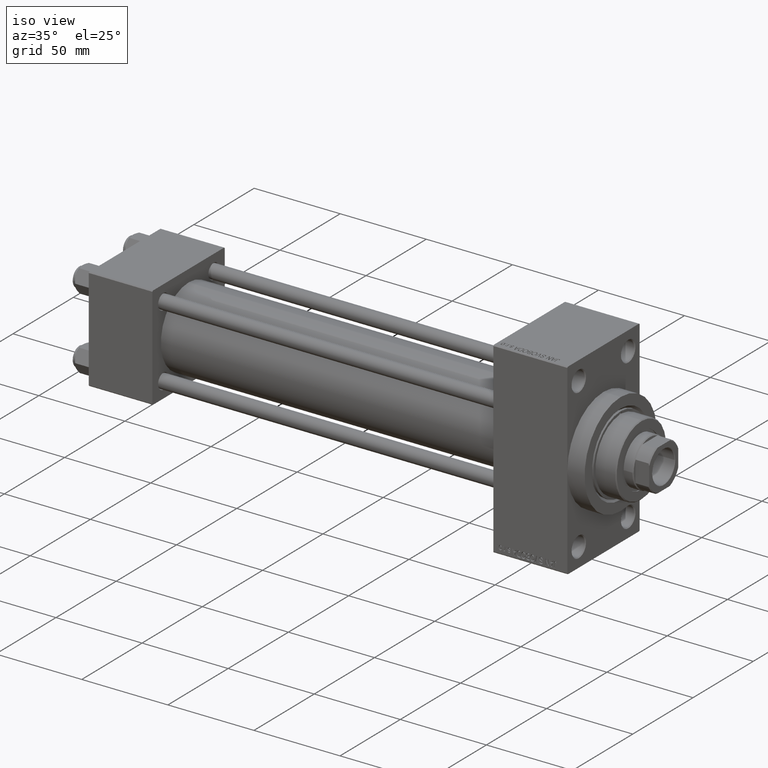
[diagram: clean part render]
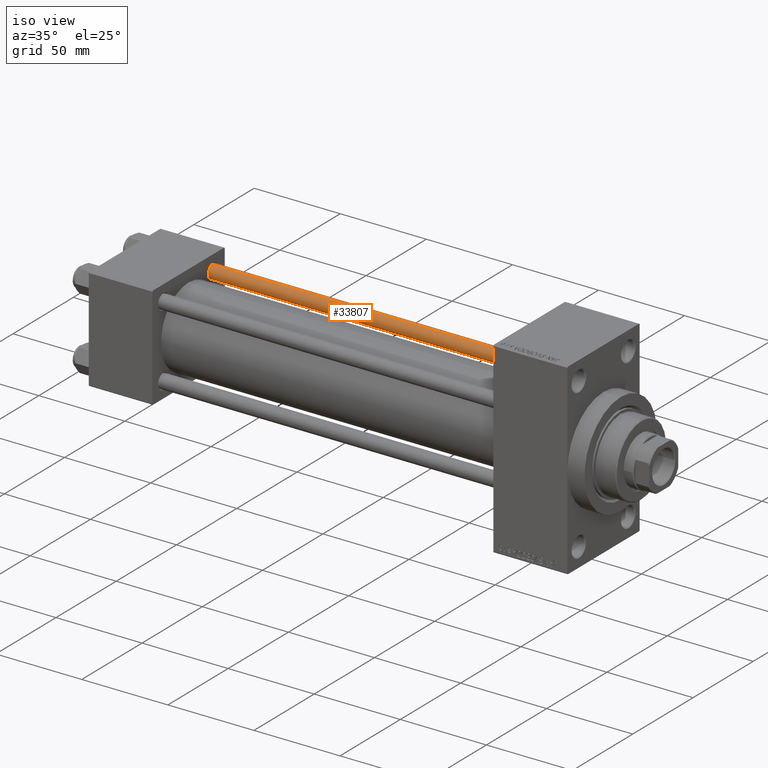
[diagram: same view with one face highlighted and labeled with its STEP entity id]
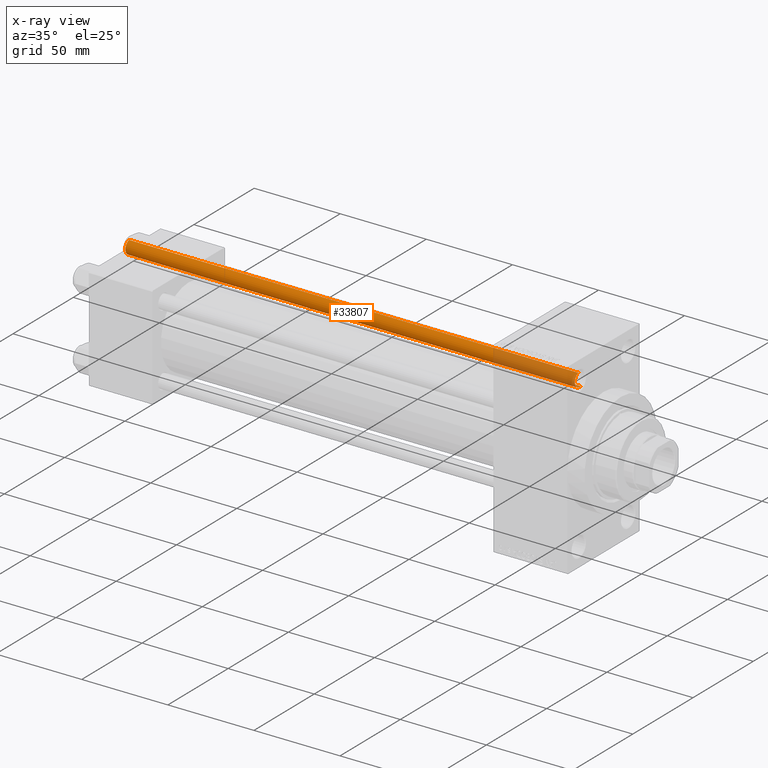
[diagram: x-ray of the same camera — body ghosted, the highlighted face saturated]
A machine part, iso view. The second image highlights one B-rep face of the part: STEP entity #33807.
The next image is the same camera in x-ray: the body ghosted, the highlighted face saturated — about 18% of this face is hidden behind the body in this view.
In plain terms, the highlighted cylindrical surface (edge-blend (fillet) strip) has radius 4 mm, axis along (-1, -0, 0).
Its self-contained STEP definition (entity closure, byte-faithful):
#380 = CIRCLE ( 'NONE', #15730, 4.000000000000000000 ) ;
#2212 = ORIENTED_EDGE ( 'NONE', *, *, #12336, .T. ) ;
#5377 = CARTESIAN_POINT ( 'NONE',  ( -4.000000000000000000, 0.000000000000000000, 0.5000000000000559552 ) ) ;
#5901 = DIRECTION ( 'NONE',  ( -1.000000000000000000, 0.000000000000000000, 0.000000000000000000 ) ) ;
#6137 = FACE_OUTER_BOUND ( 'NONE', #21073, .T. ) ;
#10549 = CARTESIAN_POINT ( 'NONE',  ( -4.000000000000000000, 0.000000000000000000, 262.0000000000000000 ) ) ;
#10957 = VECTOR ( 'NONE', #25201, 1000.000000000000000 ) ;
#11605 = ORIENTED_EDGE ( 'NONE', *, *, #22136, .T. ) ;
#12336 = EDGE_CURVE ( 'NONE', #37679, #12373, #40007, .T. ) ;
#12373 = VERTEX_POINT ( 'NONE', #44074 ) ;
#14207 = AXIS2_PLACEMENT_3D ( 'NONE', #31615, #24419, #5901 ) ;
#15201 = VERTEX_POINT ( 'NONE', #41320 ) ;
#15494 = EDGE_CURVE ( 'NONE', #28368, #37679, #47070, .T. ) ;
#15730 = AXIS2_PLACEMENT_3D ( 'NONE', #46528, #43156, #24660 ) ;
#17426 = DIRECTION ( 'NONE',  ( -0.000000000000000000, -0.000000000000000000, 1.000000000000000000 ) ) ;
#17723 = CARTESIAN_POINT ( 'NONE',  ( -4.000000000000000000, 0.000000000000000000, 261.5000000000000000 ) ) ;
#18782 = VECTOR ( 'NONE', #30875, 1000.000000000000000 ) ;
#21073 = EDGE_LOOP ( 'NONE', ( #30822, #11605, #45488, #2212 ) ) ;
#22136 = EDGE_CURVE ( 'NONE', #15201, #28368, #380, .T. ) ;
#24245 = EDGE_CURVE ( 'NONE', #15201, #12373, #27279, .T. ) ;
#24419 = DIRECTION ( 'NONE',  ( -0.000000000000000000, -0.000000000000000000, -1.000000000000000000 ) ) ;
#24660 = DIRECTION ( 'NONE',  ( 1.000000000000000000, 0.000000000000000000, 0.000000000000000000 ) ) ;
#25201 = DIRECTION ( 'NONE',  ( -0.000000000000000000, -0.000000000000000000, -1.000000000000000000 ) ) ;
#27279 = LINE ( 'NONE', #38795, #18782 ) ;
#28368 = VERTEX_POINT ( 'NONE', #17723 ) ;
#30822 = ORIENTED_EDGE ( 'NONE', *, *, #24245, .F. ) ;
#30875 = DIRECTION ( 'NONE',  ( -0.000000000000000000, -0.000000000000000000, -1.000000000000000000 ) ) ;
#31615 = CARTESIAN_POINT ( 'NONE',  ( 0.000000000000000000, 0.000000000000000000, 262.0000000000000000 ) ) ;
#32071 = DIRECTION ( 'NONE',  ( 1.000000000000000000, 0.000000000000000000, 0.000000000000000000 ) ) ;
#33807 = ADVANCED_FACE ( 'NONE', ( #6137 ), #35704, .T. ) ;
#35704 = CYLINDRICAL_SURFACE ( 'NONE', #14207, 4.000000000000000000 ) ;
#37679 = VERTEX_POINT ( 'NONE', #5377 ) ;
#38795 = CARTESIAN_POINT ( 'NONE',  ( 4.000000000000000000, 4.898587196589412829E-16, 262.0000000000000000 ) ) ;
#39764 = CARTESIAN_POINT ( 'NONE',  ( 0.000000000000000000, 0.000000000000000000, 0.5000000000000559552 ) ) ;
#40007 = CIRCLE ( 'NONE', #45382, 4.000000000000000000 ) ;
#41320 = CARTESIAN_POINT ( 'NONE',  ( 4.000000000000000000, 4.898587196589412829E-16, 261.5000000000000000 ) ) ;
#43156 = DIRECTION ( 'NONE',  ( 0.000000000000000000, 0.000000000000000000, -1.000000000000000000 ) ) ;
#44074 = CARTESIAN_POINT ( 'NONE',  ( 4.000000000000000000, 4.898587196589412829E-16, 0.5000000000000559552 ) ) ;
#45382 = AXIS2_PLACEMENT_3D ( 'NONE', #39764, #17426, #32071 ) ;
#45488 = ORIENTED_EDGE ( 'NONE', *, *, #15494, .T. ) ;
#46528 = CARTESIAN_POINT ( 'NONE',  ( 0.000000000000000000, 0.000000000000000000, 261.5000000000000000 ) ) ;
#47070 = LINE ( 'NONE', #10549, #10957 ) ;